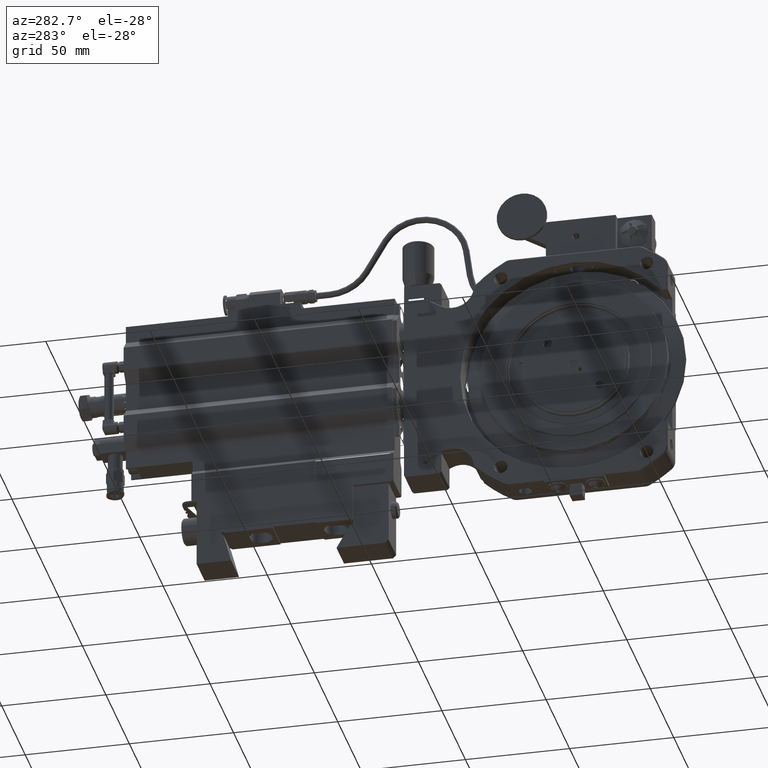
[diagram: clean part render]
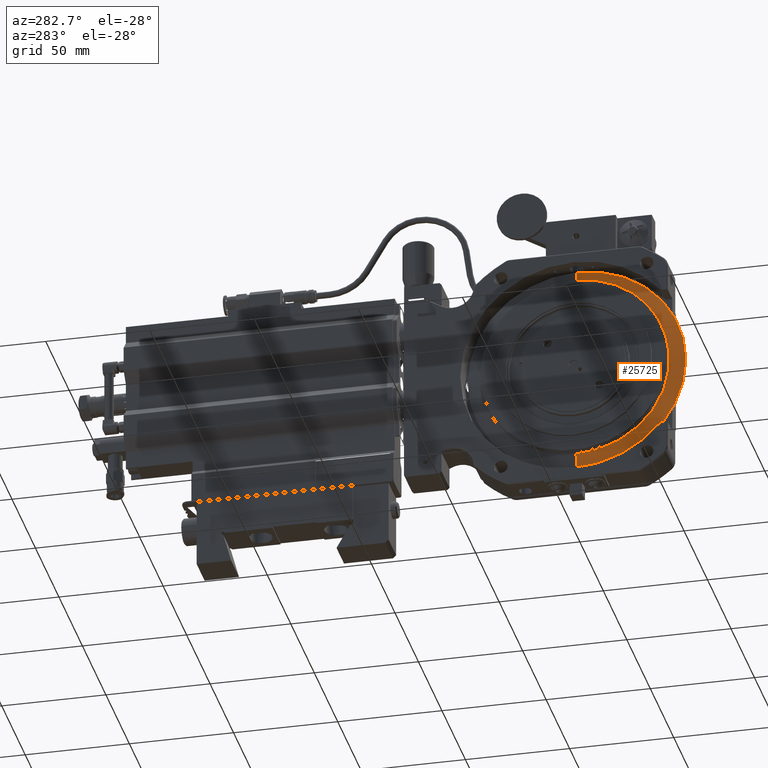
[diagram: same view with one face highlighted and labeled with its STEP entity id]
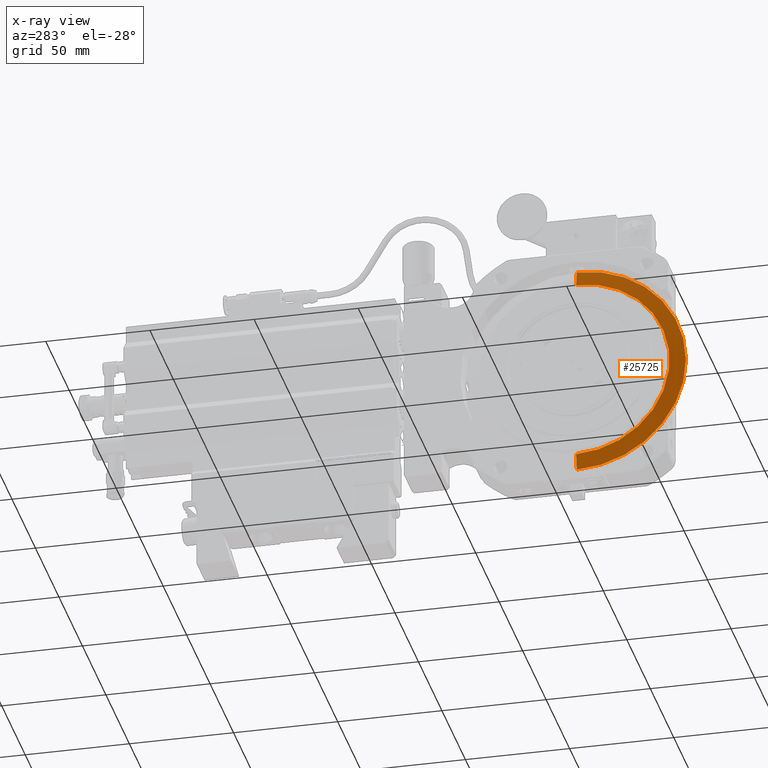
[diagram: x-ray of the same camera — body ghosted, the highlighted face saturated]
A machine part, auxiliary view. The second image highlights one B-rep face of the part: STEP entity #25725.
The next image is the same camera in x-ray: the body ghosted, the highlighted face saturated — about 0% of this face is hidden behind the body in this view.
In plain terms, the highlighted conical surface has half-angle 78.25 deg.
Its self-contained STEP definition (entity closure, byte-faithful):
#293 = AXIS2_PLACEMENT_3D ( 'NONE', #27638, #17935, #27958 ) ;
#1005 = DIRECTION ( 'NONE',  ( 0.000000000000000000, 0.000000000000000000, 1.000000000000000000 ) ) ;
#7389 = VERTEX_POINT ( 'NONE', #25470 ) ;
#9376 = ORIENTED_EDGE ( 'NONE', *, *, #58757, .F. ) ;
#10419 = AXIS2_PLACEMENT_3D ( 'NONE', #25306, #25916, #39988 ) ;
#13955 = LINE ( 'NONE', #33603, #29960 ) ;
#14543 = CIRCLE ( 'NONE', #10419, 1.764574729309388523 ) ;
#14645 = CONICAL_SURFACE ( 'NONE', #293, 2.059719835105739527, 1.365720139685569601 ) ;
#17437 = VERTEX_POINT ( 'NONE', #22831 ) ;
#17935 = DIRECTION ( 'NONE',  ( 1.000000000000000000, 0.000000000000000000, 0.000000000000000000 ) ) ;
#20298 = DIRECTION ( 'NONE',  ( -1.000000000000000000, -0.000000000000000000, -0.000000000000000000 ) ) ;
#20587 = CARTESIAN_POINT ( 'NONE',  ( -0.1457319988986977011, 0.03937007874019379794, -1.764574729309388523 ) ) ;
#21296 = LINE ( 'NONE', #60562, #26072 ) ;
#22831 = CARTESIAN_POINT ( 'NONE',  ( -0.08434172860584750187, 0.03937007874019379794, -2.059719835105739527 ) ) ;
#25306 = CARTESIAN_POINT ( 'NONE',  ( -0.1457319988986977011, 0.03937007874019379794, 7.215558828858822178E-29 ) ) ;
#25470 = CARTESIAN_POINT ( 'NONE',  ( -0.1457319988986977011, 0.03937007874019401304, 1.764574729309388523 ) ) ;
#25725 = ADVANCED_FACE ( 'NONE', ( #47543 ), #14645, .T. ) ;
#25916 = DIRECTION ( 'NONE',  ( -1.000000000000000000, -0.000000000000000000, -0.000000000000000000 ) ) ;
#26072 = VECTOR ( 'NONE', #36095, 39.37007874015748854 ) ;
#26106 = CARTESIAN_POINT ( 'NONE',  ( -0.08434172860584750187, 0.03937007874019379794, 7.215558828858822178E-29 ) ) ;
#27638 = CARTESIAN_POINT ( 'NONE',  ( -0.08434172860584750187, 0.03937007874019379794, 7.215558828858822178E-29 ) ) ;
#27958 = DIRECTION ( 'NONE',  ( 0.000000000000000000, 0.000000000000000000, -1.000000000000000000 ) ) ;
#29566 = AXIS2_PLACEMENT_3D ( 'NONE', #26106, #20298, #1005 ) ;
#29960 = VECTOR ( 'NONE', #38703, 39.37007874015748854 ) ;
#31740 = ORIENTED_EDGE ( 'NONE', *, *, #58990, .T. ) ;
#32637 = CIRCLE ( 'NONE', #29566, 2.059719835105739527 ) ;
#33603 = CARTESIAN_POINT ( 'NONE',  ( -0.08434172860584750187, 0.03937007874019379794, -2.059719835105739527 ) ) ;
#36094 = CARTESIAN_POINT ( 'NONE',  ( -0.08434172860584750187, 0.03937007874019405468, 2.059719835105739527 ) ) ;
#36095 = DIRECTION ( 'NONE',  ( 0.2036417511401709124, 1.198984904097955515E-16, 0.9790454724845852885 ) ) ;
#37507 = ORIENTED_EDGE ( 'NONE', *, *, #44116, .T. ) ;
#38703 = DIRECTION ( 'NONE',  ( 0.2036417511401709124, 0.000000000000000000, -0.9790454724845852885 ) ) ;
#39831 = EDGE_CURVE ( 'NONE', #7389, #45707, #21296, .T. ) ;
#39988 = DIRECTION ( 'NONE',  ( 0.000000000000000000, 0.000000000000000000, 1.000000000000000000 ) ) ;
#41647 = EDGE_LOOP ( 'NONE', ( #49823, #9376, #31740, #37507 ) ) ;
#44116 = EDGE_CURVE ( 'NONE', #17437, #45707, #32637, .T. ) ;
#45707 = VERTEX_POINT ( 'NONE', #36094 ) ;
#47543 = FACE_OUTER_BOUND ( 'NONE', #41647, .T. ) ;
#49823 = ORIENTED_EDGE ( 'NONE', *, *, #39831, .F. ) ;
#54743 = VERTEX_POINT ( 'NONE', #20587 ) ;
#58757 = EDGE_CURVE ( 'NONE', #54743, #7389, #14543, .T. ) ;
#58990 = EDGE_CURVE ( 'NONE', #54743, #17437, #13955, .T. ) ;
#60562 = CARTESIAN_POINT ( 'NONE',  ( -0.08434172860584750187, 0.03937007874019405468, 2.059719835105739527 ) ) ;